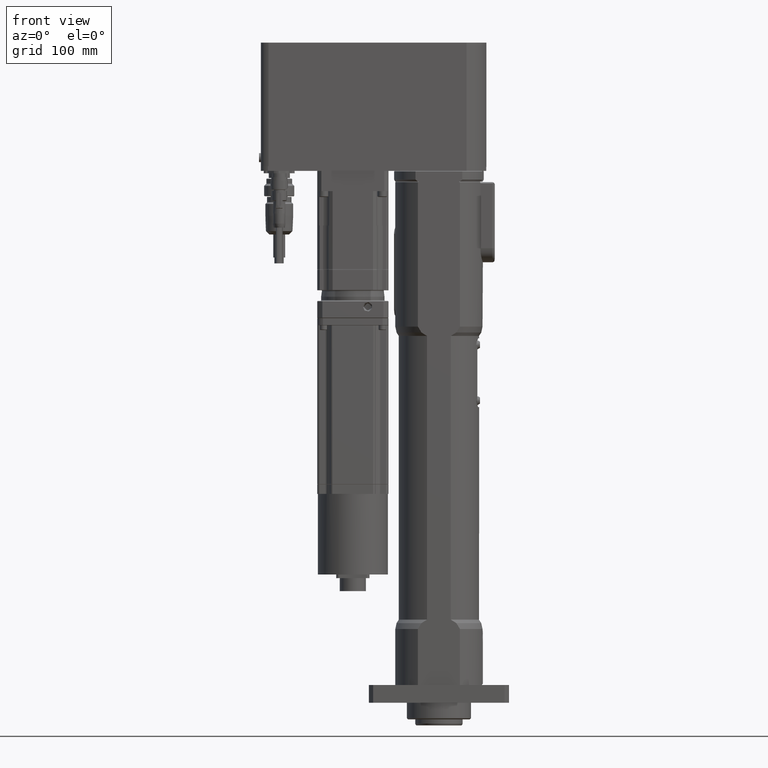
[diagram: clean part render]
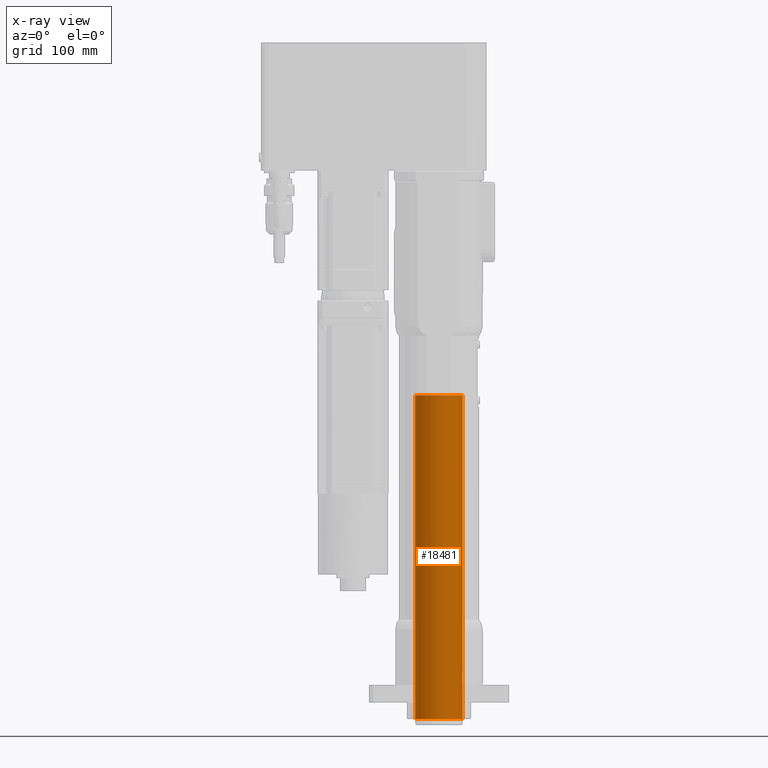
[diagram: x-ray — body ghosted, one internal face saturated and labeled with its STEP entity id]
A machine part, front view, then the same camera in x-ray: the body is ghosted and one INTERNAL B-rep face — a face not visible from any outside direction — is saturated and labeled: STEP entity #18481.
In plain terms, the highlighted cylindrical surface (bore or boss wall) has radius 20 mm, axis along (0, 0, 1).
Its self-contained STEP definition (entity closure, byte-faithful):
#1620=FACE_BOUND('',#4793,.T.);
#1621=FACE_BOUND('',#4794,.T.);
#1622=FACE_BOUND('',#4795,.T.);
#1623=FACE_BOUND('',#4796,.T.);
#1987=CIRCLE('',#19816,20.);
#1993=CIRCLE('',#19836,20.);
#2034=CIRCLE('',#19912,20.);
#2035=CIRCLE('',#19913,20.);
#2719=CYLINDRICAL_SURFACE('',#19911,20.);
#3002=B_SPLINE_CURVE_WITH_KNOTS('',3,(#31785,#31786,#31787,#31788,#31789,
#31790,#31791,#31792,#31793,#31794,#31795,#31796,#31797,#31798,#31799,#31800,
#31801,#31802,#31803,#31804,#31805,#31806,#31807,#31808,#31809,#31810,#31811,
#31812,#31813,#31814,#31815,#31816,#31817,#31818),.UNSPECIFIED.,.T.,.F.,
(4,2,2,2,2,2,2,2,2,2,2,2,2,2,2,2,4),(0.,0.0610897130723132,0.122179426144626,
0.183269049775174,0.244358673405721,0.305448297036269,0.366537920666816,
0.427627633739129,0.488717346811442,0.549807059883755,0.610896772956069,
0.671986396586616,0.733076020217163,0.794165643847711,0.855255267478258,
0.916344980550571,0.977434693622885),.UNSPECIFIED.);
#3003=B_SPLINE_CURVE_WITH_KNOTS('',3,(#31820,#31821,#31822,#31823,#31824,
#31825,#31826,#31827,#31828,#31829,#31830,#31831,#31832,#31833,#31834,#31835,
#31836,#31837,#31838,#31839,#31840,#31841,#31842,#31843,#31844,#31845,#31846,
#31847,#31848,#31849,#31850,#31851,#31852,#31853),.UNSPECIFIED.,.T.,.F.,
(4,2,2,2,2,2,2,2,2,2,2,2,2,2,2,2,4),(0.,0.0610897130723132,0.122179426144626,
0.183269049775174,0.244358673405721,0.305448297036269,0.366537920666816,
0.427627633739129,0.488717346811442,0.549807059883756,0.610896772956069,
0.671986396586616,0.733076020217164,0.794165643847711,0.855255267478258,
0.916344980550571,0.977434693622885),.UNSPECIFIED.);
#3570=FACE_OUTER_BOUND('',#4792,.T.);
#4792=EDGE_LOOP('',(#14398));
#4793=EDGE_LOOP('',(#14399,#14400,#14401,#14402));
#4794=EDGE_LOOP('',(#14403));
#4795=EDGE_LOOP('',(#14404));
#4796=EDGE_LOOP('',(#14405));
#6094=LINE('',#31384,#7407);
#6134=LINE('',#31476,#7447);
#7407=VECTOR('',#22973,10.);
#7447=VECTOR('',#23059,10.);
#8865=VERTEX_POINT('',#31382);
#8866=VERTEX_POINT('',#31383);
#8871=VERTEX_POINT('',#31395);
#8895=VERTEX_POINT('',#31472);
#8972=VERTEX_POINT('',#31782);
#8973=VERTEX_POINT('',#31784);
#8974=VERTEX_POINT('',#31819);
#8975=VERTEX_POINT('',#31854);
#10810=EDGE_CURVE('',#8865,#8866,#6094,.T.);
#10816=EDGE_CURVE('',#8871,#8865,#1987,.T.);
#10855=EDGE_CURVE('',#8866,#8895,#1993,.T.);
#10857=EDGE_CURVE('',#8895,#8871,#6134,.T.);
#10951=EDGE_CURVE('',#8972,#8972,#2034,.T.);
#10952=EDGE_CURVE('',#8973,#8973,#3002,.T.);
#10953=EDGE_CURVE('',#8974,#8974,#3003,.T.);
#10954=EDGE_CURVE('',#8975,#8975,#2035,.T.);
#14398=ORIENTED_EDGE('',*,*,#10951,.T.);
#14399=ORIENTED_EDGE('',*,*,#10816,.T.);
#14400=ORIENTED_EDGE('',*,*,#10810,.T.);
#14401=ORIENTED_EDGE('',*,*,#10855,.T.);
#14402=ORIENTED_EDGE('',*,*,#10857,.T.);
#14403=ORIENTED_EDGE('',*,*,#10952,.T.);
#14404=ORIENTED_EDGE('',*,*,#10953,.T.);
#14405=ORIENTED_EDGE('',*,*,#10954,.F.);
#18481=ADVANCED_FACE('',(#3570,#1620,#1621,#1622,#1623),#2719,.F.);
#19816=AXIS2_PLACEMENT_3D('',#31396,#22981,#22982);
#19836=AXIS2_PLACEMENT_3D('',#31473,#23054,#23055);
#19911=AXIS2_PLACEMENT_3D('',#31781,#23241,#23242);
#19912=AXIS2_PLACEMENT_3D('',#31783,#23243,#23244);
#19913=AXIS2_PLACEMENT_3D('',#31855,#23245,#23246);
#22973=DIRECTION('',(0.,0.,-1.));
#22981=DIRECTION('center_axis',(0.,-3.24731666659712E-16,-1.));
#22982=DIRECTION('ref_axis',(-1.,0.,0.));
#23054=DIRECTION('center_axis',(0.,-7.17765564207009E-17,1.));
#23055=DIRECTION('ref_axis',(-1.,0.,0.));
#23059=DIRECTION('',(0.,0.,1.));
#23241=DIRECTION('center_axis',(0.,0.,1.));
#23242=DIRECTION('ref_axis',(-1.,0.,0.));
#23243=DIRECTION('center_axis',(0.,0.,1.));
#23244=DIRECTION('ref_axis',(-1.,0.,0.));
#23245=DIRECTION('center_axis',(0.,0.,1.));
#23246=DIRECTION('ref_axis',(-1.,0.,0.));
#31382=CARTESIAN_POINT('',(19.7737199332852,-3.,40.5));
#31383=CARTESIAN_POINT('',(19.7737199332852,-3.,30.5));
#31384=CARTESIAN_POINT('',(19.7737199332852,-3.,0.));
#31395=CARTESIAN_POINT('',(19.7737199332852,3.,40.5));
#31396=CARTESIAN_POINT('Origin',(0.,0.,40.5));
#31472=CARTESIAN_POINT('',(19.7737199332852,3.,30.5));
#31473=CARTESIAN_POINT('Origin',(0.,0.,30.5));
#31476=CARTESIAN_POINT('',(19.7737199332852,3.,0.));
#31781=CARTESIAN_POINT('Origin',(0.,0.,0.));
#31782=CARTESIAN_POINT('',(-20.,2.44929359829471E-15,273.));
#31783=CARTESIAN_POINT('Origin',(0.,0.,273.));
#31784=CARTESIAN_POINT('',(19.9342007364228,1.621,66.5));
#31785=CARTESIAN_POINT('Ctrl Pts',(19.9342007364228,1.621,66.5));
#31786=CARTESIAN_POINT('Ctrl Pts',(19.9342007364228,1.621,66.7036323769077));
#31787=CARTESIAN_POINT('Ctrl Pts',(19.9376422779811,1.58028572586809,66.9207766320505));
#31788=CARTESIAN_POINT('Ctrl Pts',(19.9500662017881,1.41482900197542,67.3201310063557));
#31789=CARTESIAN_POINT('Ctrl Pts',(19.9588684857962,1.29009144814773,67.502348736459));
#31790=CARTESIAN_POINT('Ctrl Pts',(19.9753864469583,1.00234894710185,67.7900912375049));
#31791=CARTESIAN_POINT('Ctrl Pts',(19.9841760998482,0.82013112383623,67.9148289545461));
#31792=CARTESIAN_POINT('Ctrl Pts',(19.9965711219685,0.420776441290678,68.0802858036578));
#31793=CARTESIAN_POINT('Ctrl Pts',(20.,0.203632078768491,68.121));
#31794=CARTESIAN_POINT('Ctrl Pts',(20.,-0.203632078768491,68.121));
#31795=CARTESIAN_POINT('Ctrl Pts',(19.9965711219685,-0.420776441290678,
68.0802858036578));
#31796=CARTESIAN_POINT('Ctrl Pts',(19.9841760998482,-0.82013112383623,67.9148289545461));
#31797=CARTESIAN_POINT('Ctrl Pts',(19.9753864469583,-1.00234894710185,67.7900912375049));
#31798=CARTESIAN_POINT('Ctrl Pts',(19.9588684857962,-1.29009144814773,67.502348736459));
#31799=CARTESIAN_POINT('Ctrl Pts',(19.9500662017881,-1.41482900197542,67.3201310063557));
#31800=CARTESIAN_POINT('Ctrl Pts',(19.9376422779811,-1.58028572586809,66.9207766320505));
#31801=CARTESIAN_POINT('Ctrl Pts',(19.9342007364228,-1.621,66.7036323769077));
#31802=CARTESIAN_POINT('Ctrl Pts',(19.9342007364228,-1.621,66.2963676230923));
#31803=CARTESIAN_POINT('Ctrl Pts',(19.9376422779811,-1.58028572586809,66.0792233679495));
#31804=CARTESIAN_POINT('Ctrl Pts',(19.9500662017881,-1.41482900197542,65.6798689936443));
#31805=CARTESIAN_POINT('Ctrl Pts',(19.9588684857962,-1.29009144814773,65.4976512635409));
#31806=CARTESIAN_POINT('Ctrl Pts',(19.9753864469583,-1.00234894710185,65.209908762495));
#31807=CARTESIAN_POINT('Ctrl Pts',(19.9841760998482,-0.82013112383623,65.0851710454539));
#31808=CARTESIAN_POINT('Ctrl Pts',(19.9965711219685,-0.420776441290678,
64.9197141963422));
#31809=CARTESIAN_POINT('Ctrl Pts',(20.,-0.203632078768491,64.879));
#31810=CARTESIAN_POINT('Ctrl Pts',(20.,0.203632078768491,64.879));
#31811=CARTESIAN_POINT('Ctrl Pts',(19.9965711219685,0.420776441290678,64.9197141963422));
#31812=CARTESIAN_POINT('Ctrl Pts',(19.9841760998482,0.82013112383623,65.0851710454539));
#31813=CARTESIAN_POINT('Ctrl Pts',(19.9753864469583,1.00234894710185,65.209908762495));
#31814=CARTESIAN_POINT('Ctrl Pts',(19.9588684857962,1.29009144814773,65.4976512635409));
#31815=CARTESIAN_POINT('Ctrl Pts',(19.9500662017881,1.41482900197542,65.6798689936443));
#31816=CARTESIAN_POINT('Ctrl Pts',(19.9376422779811,1.58028572586809,66.0792233679495));
#31817=CARTESIAN_POINT('Ctrl Pts',(19.9342007364228,1.621,66.2963676230923));
#31818=CARTESIAN_POINT('Ctrl Pts',(19.9342007364228,1.621,66.5));
#31819=CARTESIAN_POINT('',(19.9342007364228,1.621,54.5));
#31820=CARTESIAN_POINT('Ctrl Pts',(19.9342007364228,1.621,54.5));
#31821=CARTESIAN_POINT('Ctrl Pts',(19.9342007364228,1.621,54.7036323769077));
#31822=CARTESIAN_POINT('Ctrl Pts',(19.9376422779811,1.58028572586809,54.9207766320505));
#31823=CARTESIAN_POINT('Ctrl Pts',(19.9500662017881,1.41482900197542,55.3201310063557));
#31824=CARTESIAN_POINT('Ctrl Pts',(19.9588684857962,1.29009144814773,55.502348736459));
#31825=CARTESIAN_POINT('Ctrl Pts',(19.9753864469583,1.00234894710185,55.7900912375049));
#31826=CARTESIAN_POINT('Ctrl Pts',(19.9841760998482,0.820131123836241,55.9148289545461));
#31827=CARTESIAN_POINT('Ctrl Pts',(19.9965711219685,0.420776441290689,56.0802858036578));
#31828=CARTESIAN_POINT('Ctrl Pts',(20.,0.203632078768491,56.121));
#31829=CARTESIAN_POINT('Ctrl Pts',(20.,-0.203632078768492,56.121));
#31830=CARTESIAN_POINT('Ctrl Pts',(19.9965711219685,-0.420776441290678,
56.0802858036578));
#31831=CARTESIAN_POINT('Ctrl Pts',(19.9841760998482,-0.82013112383623,55.9148289545461));
#31832=CARTESIAN_POINT('Ctrl Pts',(19.9753864469583,-1.00234894710185,55.7900912375049));
#31833=CARTESIAN_POINT('Ctrl Pts',(19.9588684857962,-1.29009144814773,55.502348736459));
#31834=CARTESIAN_POINT('Ctrl Pts',(19.9500662017881,-1.41482900197542,55.3201310063557));
#31835=CARTESIAN_POINT('Ctrl Pts',(19.9376422779811,-1.58028572586809,54.9207766320505));
#31836=CARTESIAN_POINT('Ctrl Pts',(19.9342007364228,-1.621,54.7036323769077));
#31837=CARTESIAN_POINT('Ctrl Pts',(19.9342007364228,-1.621,54.2963676230923));
#31838=CARTESIAN_POINT('Ctrl Pts',(19.9376422779811,-1.58028572586809,54.0792233679495));
#31839=CARTESIAN_POINT('Ctrl Pts',(19.9500662017881,-1.41482900197542,53.6798689936443));
#31840=CARTESIAN_POINT('Ctrl Pts',(19.9588684857962,-1.29009144814773,53.4976512635409));
#31841=CARTESIAN_POINT('Ctrl Pts',(19.9753864469583,-1.00234894710185,53.2099087624951));
#31842=CARTESIAN_POINT('Ctrl Pts',(19.9841760998482,-0.82013112383623,53.0851710454539));
#31843=CARTESIAN_POINT('Ctrl Pts',(19.9965711219685,-0.420776441290678,
52.9197141963422));
#31844=CARTESIAN_POINT('Ctrl Pts',(20.,-0.203632078768491,52.879));
#31845=CARTESIAN_POINT('Ctrl Pts',(20.,0.203632078768491,52.879));
#31846=CARTESIAN_POINT('Ctrl Pts',(19.9965711219685,0.420776441290678,52.9197141963422));
#31847=CARTESIAN_POINT('Ctrl Pts',(19.9841760998482,0.82013112383623,53.0851710454539));
#31848=CARTESIAN_POINT('Ctrl Pts',(19.9753864469583,1.00234894710185,53.2099087624951));
#31849=CARTESIAN_POINT('Ctrl Pts',(19.9588684857962,1.29009144814773,53.4976512635409));
#31850=CARTESIAN_POINT('Ctrl Pts',(19.9500662017881,1.41482900197542,53.6798689936443));
#31851=CARTESIAN_POINT('Ctrl Pts',(19.9376422779811,1.58028572586809,54.0792233679495));
#31852=CARTESIAN_POINT('Ctrl Pts',(19.9342007364228,1.621,54.2963676230923));
#31853=CARTESIAN_POINT('Ctrl Pts',(19.9342007364228,1.621,54.5));
#31854=CARTESIAN_POINT('',(20.,2.44929359829471E-15,0.));
#31855=CARTESIAN_POINT('Origin',(0.,0.,0.));